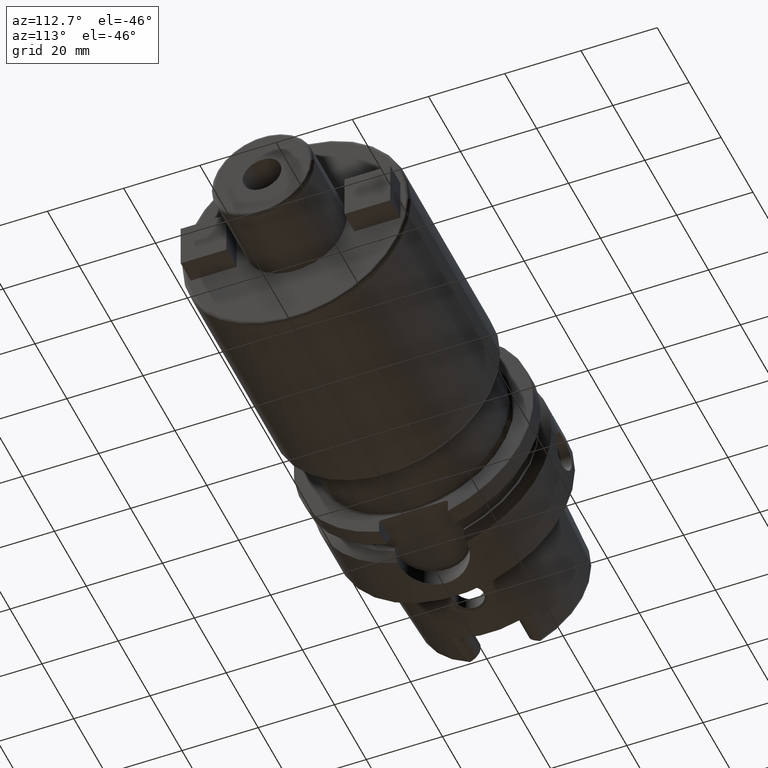
[diagram: clean part render]
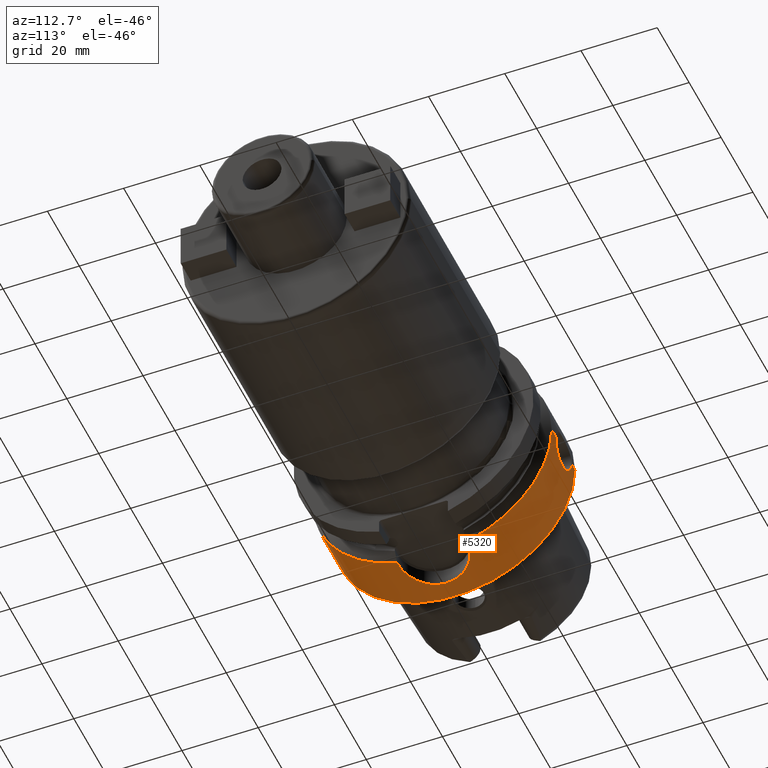
[diagram: same view with one face highlighted and labeled with its STEP entity id]
A machine part, auxiliary view. The second image highlights one B-rep face of the part: STEP entity #5320.
In plain terms, the highlighted cylindrical surface (partial cylindrical patch) has radius 31.5 mm, axis along (1, 0, 0).
Its self-contained STEP definition (entity closure, byte-faithful):
#1073=CARTESIAN_POINT('',(-1.421085471520E-14,0.E0,0.E0));
#1074=DIRECTION('',(-1.E0,0.E0,0.E0));
#1075=DIRECTION('',(0.E0,1.E0,0.E0));
#1076=AXIS2_PLACEMENT_3D('',#1073,#1074,#1075);
#1124=CARTESIAN_POINT('',(2.E0,3.15E1,-1.916034746595E-14));
#1126=CARTESIAN_POINT('',(1.2E1,3.15E1,0.E0));
#1669=CARTESIAN_POINT('',(1.39675E1,9.0175E0,-3.018169467989E1));
#1670=CARTESIAN_POINT('',(1.358558656281E1,9.0175E0,-3.018169467989E1));
#1671=CARTESIAN_POINT('',(1.282118465468E1,8.969691357916E0,-3.019604517684E1));
#1672=CARTESIAN_POINT('',(1.165591828593E1,8.743491566228E0,-3.026274300150E1));
#1673=CARTESIAN_POINT('',(1.052276298313E1,8.361963120688E0,-3.037104920547E1));
#1674=CARTESIAN_POINT('',(9.456122836012E0,7.837772025634E0,-3.051135915032E1));
#1675=CARTESIAN_POINT('',(8.470252282138E0,7.180724754911E0,-3.067358430769E1));
#1676=CARTESIAN_POINT('',(7.575631308163E0,6.398050863983E0,-3.084741609441E1));
#1677=CARTESIAN_POINT('',(6.786194961893E0,5.497065304782E0,-3.102161724462E1));
#1678=CARTESIAN_POINT('',(6.130229967676E0,4.511622175765E0,-3.118093411543E1));
#1679=CARTESIAN_POINT('',(5.609342792779E0,3.453031312959E0,-3.131662634576E1));
#1680=CARTESIAN_POINT('',(5.228345621102E0,2.326812347583E0,-3.142101017036E1));
#1681=CARTESIAN_POINT('',(4.999797746036E0,1.164288452435E0,-3.148568890825E1));
#1682=CARTESIAN_POINT('',(4.925086592477E0,-1.642939922344E-4,
-3.150715972921E1));
#1683=CARTESIAN_POINT('',(4.999855898167E0,-1.164866928839E0,
-3.148567217088E1));
#1684=CARTESIAN_POINT('',(5.228566513789E0,-2.327652949522E0,
-3.142094829471E1));
#1685=CARTESIAN_POINT('',(5.609617740094E0,-3.453657849156E0,
-3.131655310854E1));
#1686=CARTESIAN_POINT('',(6.130421690937E0,-4.511937610781E0,
-3.118088635565E1));
#1687=CARTESIAN_POINT('',(6.786402135999E0,-5.497346241188E0,
-3.102156844966E1));
#1688=CARTESIAN_POINT('',(7.576014991373E0,-6.398444919226E0,
-3.084733497918E1));
#1689=CARTESIAN_POINT('',(8.470738074749E0,-7.181093772441E0,
-3.067349724349E1));
#1690=CARTESIAN_POINT('',(9.456668390199E0,-7.838101066607E0,
-3.051127521442E1));
#1691=CARTESIAN_POINT('',(1.052385858790E1,-8.362443708215E0,
-3.037091729406E1));
#1692=CARTESIAN_POINT('',(1.165737665338E1,-8.743869582945E0,
-3.026263280158E1));
#1693=CARTESIAN_POINT('',(1.282210884292E1,-8.969775642486E0,
-3.019601972103E1));
#1694=CARTESIAN_POINT('',(1.358595047E1,-9.0175E0,-3.018169467989E1));
#1695=CARTESIAN_POINT('',(1.39675E1,-9.0175E0,-3.018169467989E1));
#1697=DIRECTION('',(1.E0,0.E0,0.E0));
#1698=VECTOR('',#1697,6.550009252407E-1);
#1699=CARTESIAN_POINT('',(1.39675E1,9.0175E0,-3.018169467989E1));
#1700=LINE('',#1699,#1698);
#1701=CARTESIAN_POINT('',(1.462250092524E1,0.E0,0.E0));
#1702=DIRECTION('',(1.E0,0.E0,0.E0));
#1703=DIRECTION('',(0.E0,2.862698412698E-1,-9.581490374568E-1));
#1704=AXIS2_PLACEMENT_3D('',#1701,#1702,#1703);
#1706=DIRECTION('',(-1.E0,0.E0,0.E0));
#1707=VECTOR('',#1706,2.622500925241E0);
#1708=CARTESIAN_POINT('',(1.462250092524E1,3.15E1,0.E0));
#1709=LINE('',#1708,#1707);
#1710=CARTESIAN_POINT('',(7.E0,3.110064308017E1,-5.E0));
#1711=CARTESIAN_POINT('',(7.237711971861E0,3.110064308017E1,-5.E0));
#1712=CARTESIAN_POINT('',(7.708364793932E0,3.110604176585E1,-4.966603280739E0));
#1713=CARTESIAN_POINT('',(8.409071627816E0,3.113002370339E1,-4.815048141531E0));
#1714=CARTESIAN_POINT('',(9.077383280619E0,3.116768201896E1,-4.566768250610E0));
#1715=CARTESIAN_POINT('',(9.709737219660E0,3.121653000009E1,-4.222389763166E0));
#1716=CARTESIAN_POINT('',(1.028259694179E1,3.127184472959E1,-3.794310232818E0));
#1717=CARTESIAN_POINT('',(1.079381736502E1,3.133002109497E1,-3.283144879213E0));
#1718=CARTESIAN_POINT('',(1.122187341968E1,3.138511895323E1,-2.710559209569E0));
#1719=CARTESIAN_POINT('',(1.156650397528E1,3.143365111660E1,-2.077946235915E0));
#1720=CARTESIAN_POINT('',(1.181475018474E1,3.147092885130E1,-1.410108381556E0));
#1721=CARTESIAN_POINT('',(1.196660689769E1,3.149467147123E1,
-7.086190467967E-1));
#1722=CARTESIAN_POINT('',(1.2E1,3.15E1,-2.377578867780E-1));
#1723=CARTESIAN_POINT('',(1.2E1,3.15E1,0.E0));
#1725=CARTESIAN_POINT('',(2.E0,3.15E1,-1.916034746595E-14));
#1726=CARTESIAN_POINT('',(2.E0,3.15E1,-2.377563632343E-1));
#1727=CARTESIAN_POINT('',(2.033376819090E0,3.149467390288E1,
-7.086329282889E-1));
#1728=CARTESIAN_POINT('',(2.185379667149E0,3.147090888892E1,-1.410571551366E0));
#1729=CARTESIAN_POINT('',(2.433605027219E0,3.143363519165E1,-2.078170817110E0));
#1730=CARTESIAN_POINT('',(2.778328809062E0,3.138509141893E1,-2.710884364051E0));
#1731=CARTESIAN_POINT('',(3.206392404829E0,3.132999596018E1,-3.283376693298E0));
#1732=CARTESIAN_POINT('',(3.717592314676E0,3.127182433739E1,-3.794478939285E0));
#1733=CARTESIAN_POINT('',(4.290556434518E0,3.121650481486E1,-4.222574092482E0));
#1734=CARTESIAN_POINT('',(4.922767506481E0,3.116767216438E1,-4.566833856024E0));
#1735=CARTESIAN_POINT('',(5.591173550853E0,3.113001241939E1,-4.815121163512E0));
#1736=CARTESIAN_POINT('',(6.291762024521E0,3.110604002637E1,-4.966613612597E0));
#1737=CARTESIAN_POINT('',(6.762337956938E0,3.110064308017E1,-5.E0));
#1738=CARTESIAN_POINT('',(7.E0,3.110064308017E1,-5.E0));
#1740=DIRECTION('',(-1.E0,0.E0,1.086605287208E-14));
#1741=VECTOR('',#1740,2.E0);
#1742=CARTESIAN_POINT('',(2.E0,3.15E1,-1.916034746595E-14));
#1743=LINE('',#1742,#1741);
#1744=DIRECTION('',(-1.E0,0.E0,0.E0));
#1745=VECTOR('',#1744,1.462250092524E1);
#1746=CARTESIAN_POINT('',(1.462250092524E1,-3.15E1,0.E0));
#1747=LINE('',#1746,#1745);
#1748=CARTESIAN_POINT('',(1.462250092524E1,0.E0,0.E0));
#1749=DIRECTION('',(1.E0,0.E0,0.E0));
#1750=DIRECTION('',(0.E0,-1.E0,0.E0));
#1751=AXIS2_PLACEMENT_3D('',#1748,#1749,#1750);
#1753=DIRECTION('',(1.E0,0.E0,0.E0));
#1754=VECTOR('',#1753,6.550009252407E-1);
#1755=CARTESIAN_POINT('',(1.39675E1,-9.0175E0,-3.018169467989E1));
#1756=LINE('',#1755,#1754);
#2853=CARTESIAN_POINT('',(-1.421085471520E-14,3.15E1,0.E0));
#2854=CARTESIAN_POINT('',(-1.421085471520E-14,-3.15E1,0.E0));
#2855=VERTEX_POINT('',#2853);
#2856=VERTEX_POINT('',#2854);
#3074=CARTESIAN_POINT('',(1.462250092524E1,-3.15E1,0.E0));
#3075=VERTEX_POINT('',#3074);
#3102=CARTESIAN_POINT('',(7.E0,3.110064308017E1,-5.E0));
#3103=VERTEX_POINT('',#3102);
#3104=VERTEX_POINT('',#1124);
#3105=VERTEX_POINT('',#1126);
#3106=CARTESIAN_POINT('',(1.462250092524E1,3.15E1,0.E0));
#3107=VERTEX_POINT('',#3106);
#3180=CARTESIAN_POINT('',(1.39675E1,-9.0175E0,-3.018169467989E1));
#3181=VERTEX_POINT('',#3180);
#3182=CARTESIAN_POINT('',(1.39675E1,9.0175E0,-3.018169467989E1));
#3183=VERTEX_POINT('',#3182);
#3212=CARTESIAN_POINT('',(1.462250092524E1,9.0175E0,-3.018169467989E1));
#3213=VERTEX_POINT('',#3212);
#3214=CARTESIAN_POINT('',(1.462250092524E1,-9.0175E0,-3.018169467989E1));
#3215=VERTEX_POINT('',#3214);
#5298=CARTESIAN_POINT('',(-3.49E1,0.E0,0.E0));
#5299=DIRECTION('',(1.E0,0.E0,0.E0));
#5300=DIRECTION('',(0.E0,-1.E0,0.E0));
#5301=AXIS2_PLACEMENT_3D('',#5298,#5299,#5300);
#5302=CYLINDRICAL_SURFACE('',#5301,3.15E1);
#5304=ORIENTED_EDGE('',*,*,#5303,.F.);
#5305=ORIENTED_EDGE('',*,*,#4796,.T.);
#5306=ORIENTED_EDGE('',*,*,#5222,.T.);
#5307=ORIENTED_EDGE('',*,*,#4674,.T.);
#5309=ORIENTED_EDGE('',*,*,#5308,.F.);
#5311=ORIENTED_EDGE('',*,*,#5310,.F.);
#5312=ORIENTED_EDGE('',*,*,#4668,.T.);
#5313=ORIENTED_EDGE('',*,*,#4643,.T.);
#5314=ORIENTED_EDGE('',*,*,#4665,.F.);
#5315=ORIENTED_EDGE('',*,*,#5237,.T.);
#5317=ORIENTED_EDGE('',*,*,#5316,.F.);
#5318=EDGE_LOOP('',(#5304,#5305,#5306,#5307,#5309,#5311,#5312,#5313,#5314,#5315,
#5317));
#5319=FACE_OUTER_BOUND('',#5318,.F.);
#5320=ADVANCED_FACE('',(#5319),#5302,.T.);
#1077=CIRCLE('',#1076,3.15E1);
#1696=B_SPLINE_CURVE_WITH_KNOTS('',3,(#1669,#1670,#1671,#1672,#1673,#1674,#1675,
#1676,#1677,#1678,#1679,#1680,#1681,#1682,#1683,#1684,#1685,#1686,#1687,#1688,
#1689,#1690,#1691,#1692,#1693,#1694,#1695),.UNSPECIFIED.,.F.,.F.,(4,1,1,1,1,1,1,
1,1,1,1,1,1,1,1,1,1,1,1,1,1,1,1,1,4),(0.E0,4.166666666667E-2,8.333333333333E-2,
1.25E-1,1.666666666667E-1,2.083333333333E-1,2.5E-1,2.916666666667E-1,
3.333333333333E-1,3.75E-1,4.166666666667E-1,4.583333333333E-1,5.E-1,
5.416666666667E-1,5.833333333333E-1,6.25E-1,6.666666666667E-1,7.083333333333E-1,
7.5E-1,7.916666666667E-1,8.333333333333E-1,8.75E-1,9.166666666667E-1,
9.583333333333E-1,1.E0),.UNSPECIFIED.);
#1705=CIRCLE('',#1704,3.15E1);
#1724=B_SPLINE_CURVE_WITH_KNOTS('',3,(#1710,#1711,#1712,#1713,#1714,#1715,#1716,
#1717,#1718,#1719,#1720,#1721,#1722,#1723),.UNSPECIFIED.,.F.,.F.,(4,1,1,1,1,1,1,
1,1,1,1,4),(0.E0,9.090909090909E-2,1.818181818182E-1,2.727272727273E-1,
3.636363636364E-1,4.545454545455E-1,5.454545454545E-1,6.363636363636E-1,
7.272727272727E-1,8.181818181818E-1,9.090909090909E-1,1.E0),.UNSPECIFIED.);
#1739=B_SPLINE_CURVE_WITH_KNOTS('',3,(#1725,#1726,#1727,#1728,#1729,#1730,#1731,
#1732,#1733,#1734,#1735,#1736,#1737,#1738),.UNSPECIFIED.,.F.,.F.,(4,1,1,1,1,1,1,
1,1,1,1,4),(0.E0,9.090909090909E-2,1.818181818182E-1,2.727272727273E-1,
3.636363636364E-1,4.545454545455E-1,5.454545454545E-1,6.363636363636E-1,
7.272727272727E-1,8.181818181818E-1,9.090909090909E-1,1.E0),.UNSPECIFIED.);
#1752=CIRCLE('',#1751,3.15E1);
#4643=EDGE_CURVE('',#2855,#2856,#1077,.T.);
#4665=EDGE_CURVE('',#3075,#2856,#1747,.T.);
#4668=EDGE_CURVE('',#3104,#2855,#1743,.T.);
#4674=EDGE_CURVE('',#3107,#3105,#1709,.T.);
#4796=EDGE_CURVE('',#3183,#3213,#1700,.T.);
#5222=EDGE_CURVE('',#3213,#3107,#1705,.T.);
#5237=EDGE_CURVE('',#3075,#3215,#1752,.T.);
#5303=EDGE_CURVE('',#3183,#3181,#1696,.T.);
#5308=EDGE_CURVE('',#3103,#3105,#1724,.T.);
#5310=EDGE_CURVE('',#3104,#3103,#1739,.T.);
#5316=EDGE_CURVE('',#3181,#3215,#1756,.T.);